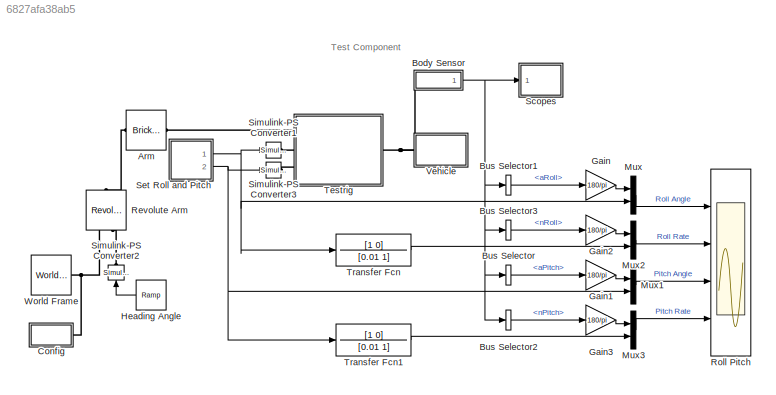
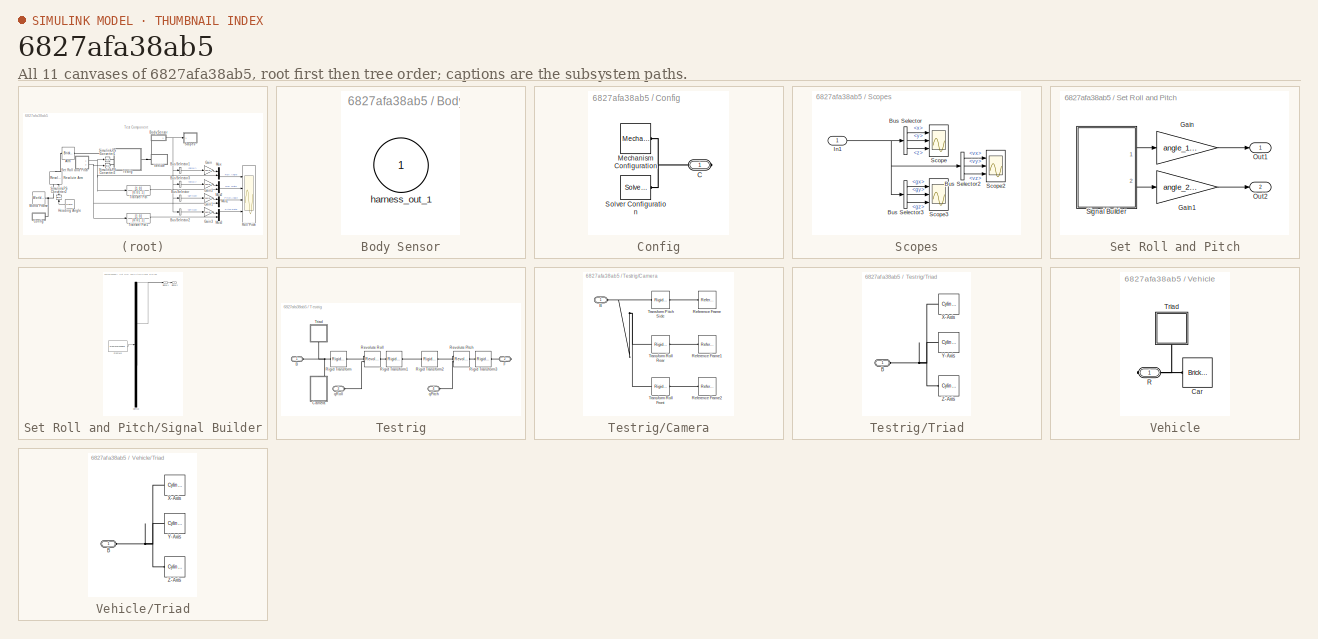
[diagram: thumbnail index - all 11 canvases of the model, root first then tree order]
MODEL slx_6827afa38ab5
KIND model
CONFIG AbsTol = auto
CONFIG EnableMultiTasking = off
CONFIG FixedStep = auto
CONFIG MaxStep = auto
CONFIG MinStep = auto
CONFIG RelTol = 1e-3
CONFIG SampleTimeConstraint = Unconstrained
CONFIG SolverName = VariableStepAuto
CONFIG StartTime = 0.0
CONFIG StopTime = 25
BLOCK [Reference] Arm  REF=sm_lib/Body Elements/Brick Solid
  Ports = [0, 0, 0, 0, 0, 1, 1]
  SourceBlock = sm_lib/Body Elements/Brick Solid
  SourceProductBaseCode = MS
  SourceType = Brick Solid
BLOCK [SubSystem] Body Sensor
  Ports = [0, 1, 0, 0, 0, 1]
  RequestExecContextInheritance = off
  Tag = __SL_testing_harness_stub_
BLOCK [Outport] Body Sensor/harness_out_1
  VectorParamsAs1DForOutWhenUnconnected = off
BLOCK [BusSelector] Bus Selector
  OutputSignals = aPitch
  Ports = [1, 1]
BLOCK [BusSelector] Bus Selector1
  OutputSignals = aRoll
  Ports = [1, 1]
BLOCK [BusSelector] Bus Selector2
  OutputSignals = nPitch
  Ports = [1, 1]
BLOCK [BusSelector] Bus Selector3
  OutputSignals = nRoll
  Ports = [1, 1]
BLOCK [SubSystem] Config
  Ports = [0, 0, 0, 0, 0, 0, 1]
  RequestExecContextInheritance = off
BLOCK [PMIOPort] Config/C
  Side = Right
BLOCK [Reference] Config/Mechanism Configuration  REF=sm_lib/Utilities/Mechanism
Configuration
  Ports = [0, 0, 0, 0, 0, 0, 1]
  SourceBlock = sm_lib/Utilities/Mechanism\nConfiguration
  SourceProductBaseCode = MS
  SourceType = Mechanism\nConfiguration
BLOCK [Reference] Config/Solver Configuration  REF=nesl_utility/Solver
Configuration
  Ports = [0, 0, 0, 0, 0, 0, 1]
  SourceBlock = nesl_utility/Solver\nConfiguration
  SourceProductBaseCode = SS,PW,VE
  SourceType = Solver\nConfiguration
BLOCK [Gain] Gain
  Gain = 180/pi
BLOCK [Gain] Gain1
  Gain = 180/pi
BLOCK [Gain] Gain2
  Gain = 180/pi
BLOCK [Gain] Gain3
  Gain = 180/pi
BLOCK [Reference] Heading Angle  REF=simulink/Sources/Ramp
  Ports = [0, 1]
  SourceBlock = simulink/Sources/Ramp
  SourceProductBaseCode = SL
  SourceType = Ramp
BLOCK [Mux] Mux
  DisplayOption = bar
  Inputs = 2
  Ports = [2, 1]
BLOCK [Mux] Mux1
  DisplayOption = bar
  Inputs = 2
  Ports = [2, 1]
BLOCK [Mux] Mux2
  DisplayOption = bar
  Inputs = 2
  Ports = [2, 1]
BLOCK [Mux] Mux3
  DisplayOption = bar
  Inputs = 2
  Ports = [2, 1]
BLOCK [Reference] Revolute Arm  REF=sm_lib/Joints/Revolute Joint
  NameLocation = left
  Ports = [0, 0, 0, 0, 0, 2, 1]
  SourceBlock = sm_lib/Joints/Revolute Joint
  SourceProductBaseCode = MS
  SourceType = Revolute Joint
BLOCK [Scope] Roll Pitch
  Floating = off
  NumInputPorts = 4
  Ports = [4]
  ScopeSpecificationString = Simulink.scopes.TimeScopeBlockCfg('CurrentConfiguration', extmgr.ConfigurationSet(extmgr.Configuration('Core','General UI',true),extmgr.Configuration('Core','Source UI',true),extmgr.Configuration('Sources','WiredSimulink',true,'DataLoggingVariableName','ScopeData1'),extmgr.Configuration('Visuals','Time Domain',true,'SerializedDisplays',{struct('MinYLimReal','-37.5','MaxYLimReal','37.5','YLabelReal...<+3385ch>
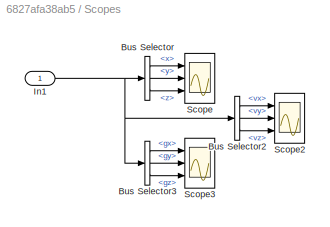
BLOCK [SubSystem] Scopes
  Ports = [1]
  RequestExecContextInheritance = off
BLOCK [BusSelector] Scopes/Bus Selector
  OutputSignals = x,y,z
  Ports = [1, 3]
BLOCK [BusSelector] Scopes/Bus Selector2
  OutputSignals = vx,vy,vz
  Ports = [1, 3]
BLOCK [BusSelector] Scopes/Bus Selector3
  OutputSignals = gx,gy,gz
  Ports = [1, 3]
BLOCK [Inport] Scopes/In1
BLOCK [Scope] Scopes/Scope
  Floating = off
  NumInputPorts = 3
  Ports = [3]
  ScopeSpecificationString = Simulink.scopes.TimeScopeBlockCfg('CurrentConfiguration', extmgr.ConfigurationSet(extmgr.Configuration('Core','General UI',true),extmgr.Configuration('Core','Source UI',true),extmgr.Configuration('Sources','WiredSimulink',true,'DataLoggingVariableName','ScopeData1'),extmgr.Configuration('Visuals','Time Domain',true,'SerializedDisplays',{struct('MinYLimReal','-0.3125','MaxYLimReal','0.3125','YLabel...<+2746ch>
BLOCK [Scope] Scopes/Scope2
  Floating = off
  NumInputPorts = 3
  Ports = [3]
  ScopeSpecificationString = Simulink.scopes.TimeScopeBlockCfg('CurrentConfiguration', extmgr.ConfigurationSet(extmgr.Configuration('Core','General UI',true),extmgr.Configuration('Core','Source UI',true),extmgr.Configuration('Sources','WiredSimulink',true,'DataLoggingVariableName','ScopeData3'),extmgr.Configuration('Visuals','Time Domain',true,'SerializedDisplays',{struct('MinYLimReal','-0.39311','MaxYLimReal','3.53796','YLab...<+2770ch>
BLOCK [Scope] Scopes/Scope3
  Floating = off
  NumInputPorts = 3
  Ports = [3]
  ScopeSpecificationString = Simulink.scopes.TimeScopeBlockCfg('CurrentConfiguration', extmgr.ConfigurationSet(extmgr.Configuration('Core','General UI',true),extmgr.Configuration('Core','Source UI',true),extmgr.Configuration('Sources','WiredSimulink',true,'DataLoggingVariableName','ScopeData4'),extmgr.Configuration('Visuals','Time Domain',true,'SerializedDisplays',{struct('MinYLimReal','-17.19122','MaxYLimReal','130.04695','Y...<+2757ch>
BLOCK [SubSystem] Set Roll and Pitch
  Ports = [0, 2]
  RequestExecContextInheritance = off
BLOCK [Gain] Set Roll and Pitch/Gain
  Gain = angle_1_max
BLOCK [Gain] Set Roll and Pitch/Gain1
  Gain = angle_2_max
BLOCK [Outport] Set Roll and Pitch/Out1
  VectorParamsAs1DForOutWhenUnconnected = off
BLOCK [Outport] Set Roll and Pitch/Out2
  Port = 2
  VectorParamsAs1DForOutWhenUnconnected = off
BLOCK [SubSystem] Set Roll and Pitch/Signal Builder
  ClipboardFcn = sigbuilder_block('clipboard');
  CloseFcn = sigbuilder_block('close');
  ContinueFcn = sigbuilder_block('continue');
  CopyFcn = sigbuilder_block('copy');
  DeleteFcn = sigbuilder_block('delete');
  LoadFcn = sigbuilder_block('load');
  MaskHideContents = on
  ModelCloseFcn = sigbuilder_block('modelClose');
  NameChangeFcn = sigbuilder_block('namechange');
  OpenFcn = sigbuilder_block('open',[437.6 199.2 550.4 400 ]);
  PauseFcn = sigbuilder_block('pause');
  Ports = [0, 2]
  PreSaveFcn = sigbuilder_block('preSave');
  RequestExecContextInheritance = off
  StartFcn = sigbuilder_block('start');
  StopFcn = sigbuilder_block('stop');
  Tag = STV Subsys
BLOCK [Demux] Set Roll and Pitch/Signal Builder/Demux
  DisplayOption = none
  Outputs = 2
  Ports = [1, 2]
  Tag = STV Demux
BLOCK [FromWorkspace] Set Roll and Pitch/Signal Builder/FromWs
  Tag = STV FromWs
  VariableName = tuvar
BLOCK [Outport] Set Roll and Pitch/Signal Builder/Signal 1
  Tag = STV Outport
  VectorParamsAs1DForOutWhenUnconnected = off
BLOCK [Outport] Set Roll and Pitch/Signal Builder/Signal 2
  Port = 2
  Tag = STV Outport
  VectorParamsAs1DForOutWhenUnconnected = off
BLOCK [Reference] Simulink-PS Converter1  REF=nesl_utility/Simulink-PS
Converter
  Ports = [1, 0, 0, 0, 0, 0, 1]
  SourceBlock = nesl_utility/Simulink-PS\nConverter
  SourceProductBaseCode = SS,PW,VE
  SourceType = Simulink-PS\nConverter
BLOCK [Reference] Simulink-PS Converter2  REF=nesl_utility/Simulink-PS
Converter
  NameLocation = right
  Ports = [1, 0, 0, 0, 0, 0, 1]
  SourceBlock = nesl_utility/Simulink-PS\nConverter
  SourceProductBaseCode = SS,PW,VE
  SourceType = Simulink-PS\nConverter
BLOCK [Reference] Simulink-PS Converter3  REF=nesl_utility/Simulink-PS
Converter
  Ports = [1, 0, 0, 0, 0, 0, 1]
  SourceBlock = nesl_utility/Simulink-PS\nConverter
  SourceProductBaseCode = SS,PW,VE
  SourceType = Simulink-PS\nConverter
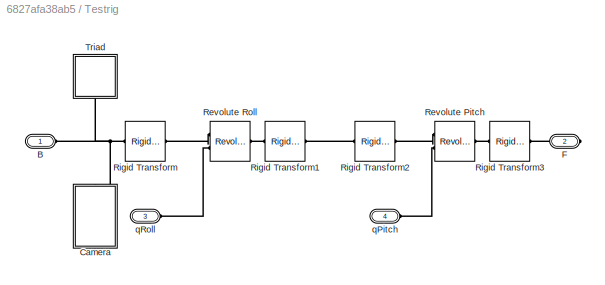
BLOCK [SubSystem] Testrig
  Ports = [0, 0, 0, 0, 0, 3, 1]
  RequestExecContextInheritance = off
BLOCK [PMIOPort] Testrig/B
  Side = Left
BLOCK [SubSystem] Testrig/Camera
  NameLocation = left
  Ports = [0, 0, 0, 0, 0, 1]
  RequestExecContextInheritance = off
BLOCK [PMIOPort] Testrig/Camera/B
  Side = Left
BLOCK [Reference] Testrig/Camera/Reference Frame  REF=sm_lib/Frames and
Transforms/Reference
Frame
  NameLocation = top
  Ports = [0, 0, 0, 0, 0, 0, 1]
  SourceBlock = sm_lib/Frames and\nTransforms/Reference\nFrame
  SourceProductBaseCode = MS
  SourceType = Reference\nFrame
BLOCK [Reference] Testrig/Camera/Reference Frame1  REF=sm_lib/Frames and
Transforms/Reference
Frame
  NameLocation = top
  Ports = [0, 0, 0, 0, 0, 0, 1]
  SourceBlock = sm_lib/Frames and\nTransforms/Reference\nFrame
  SourceProductBaseCode = MS
  SourceType = Reference\nFrame
BLOCK [Reference] Testrig/Camera/Reference Frame2  REF=sm_lib/Frames and
Transforms/Reference
Frame
  NameLocation = top
  Ports = [0, 0, 0, 0, 0, 0, 1]
  SourceBlock = sm_lib/Frames and\nTransforms/Reference\nFrame
  SourceProductBaseCode = MS
  SourceType = Reference\nFrame
BLOCK [Reference] Testrig/Camera/Transform Pitch Side  REF=sm_lib/Frames and
Transforms/Rigid
Transform
  Ports = [0, 0, 0, 0, 0, 1, 1]
  SourceBlock = sm_lib/Frames and\nTransforms/Rigid\nTransform
  SourceProductBaseCode = MS
  SourceType = Rigid\nTransform
BLOCK [Reference] Testrig/Camera/Transform Roll Front  REF=sm_lib/Frames and
Transforms/Rigid
Transform
  Ports = [0, 0, 0, 0, 0, 1, 1]
  SourceBlock = sm_lib/Frames and\nTransforms/Rigid\nTransform
  SourceProductBaseCode = MS
  SourceType = Rigid\nTransform
BLOCK [Reference] Testrig/Camera/Transform Roll Rear  REF=sm_lib/Frames and
Transforms/Rigid
Transform
  Ports = [0, 0, 0, 0, 0, 1, 1]
  SourceBlock = sm_lib/Frames and\nTransforms/Rigid\nTransform
  SourceProductBaseCode = MS
  SourceType = Rigid\nTransform
BLOCK [PMIOPort] Testrig/F
  Port = 2
  Side = Right
BLOCK [Reference] Testrig/Revolute Pitch  REF=sm_lib/Joints/Revolute Joint
  Ports = [0, 0, 0, 0, 0, 2, 1]
  SourceBlock = sm_lib/Joints/Revolute Joint
  SourceProductBaseCode = MS
  SourceType = Revolute Joint
BLOCK [Reference] Testrig/Revolute Roll  REF=sm_lib/Joints/Revolute Joint
  Ports = [0, 0, 0, 0, 0, 2, 1]
  SourceBlock = sm_lib/Joints/Revolute Joint
  SourceProductBaseCode = MS
  SourceType = Revolute Joint
BLOCK [Reference] Testrig/Rigid Transform  REF=sm_lib/Frames and
Transforms/Rigid
Transform
  Ports = [0, 0, 0, 0, 0, 1, 1]
  SourceBlock = sm_lib/Frames and\nTransforms/Rigid\nTransform
  SourceProductBaseCode = MS
  SourceType = Rigid\nTransform
BLOCK [Reference] Testrig/Rigid Transform1  REF=sm_lib/Frames and
Transforms/Rigid
Transform
  Ports = [0, 0, 0, 0, 0, 1, 1]
  SourceBlock = sm_lib/Frames and\nTransforms/Rigid\nTransform
  SourceProductBaseCode = MS
  SourceType = Rigid\nTransform
BLOCK [Reference] Testrig/Rigid Transform2  REF=sm_lib/Frames and
Transforms/Rigid
Transform
  Ports = [0, 0, 0, 0, 0, 1, 1]
  SourceBlock = sm_lib/Frames and\nTransforms/Rigid\nTransform
  SourceProductBaseCode = MS
  SourceType = Rigid\nTransform
BLOCK [Reference] Testrig/Rigid Transform3  REF=sm_lib/Frames and
Transforms/Rigid
Transform
  Ports = [0, 0, 0, 0, 0, 1, 1]
  SourceBlock = sm_lib/Frames and\nTransforms/Rigid\nTransform
  SourceProductBaseCode = MS
  SourceType = Rigid\nTransform
BLOCK [SubSystem] Testrig/Triad
  NameLocation = right
  Ports = [0, 0, 0, 0, 0, 1]
  RequestExecContextInheritance = off
BLOCK [PMIOPort] Testrig/Triad/B
  Side = Left
BLOCK [Reference] Testrig/Triad/X-Axis  REF=sm_lib/Body Elements/Cylindrical Solid
  Ports = [0, 0, 0, 0, 0, 1]
  SourceBlock = sm_lib/Body Elements/Cylindrical Solid
  SourceProductBaseCode = MS
  SourceType = Cylindrical Solid
BLOCK [Reference] Testrig/Triad/Y-Axis  REF=sm_lib/Body Elements/Cylindrical Solid
  Ports = [0, 0, 0, 0, 0, 1]
  SourceBlock = sm_lib/Body Elements/Cylindrical Solid
  SourceProductBaseCode = MS
  SourceType = Cylindrical Solid
BLOCK [Reference] Testrig/Triad/Z-Axis  REF=sm_lib/Body Elements/Cylindrical Solid
  Ports = [0, 0, 0, 0, 0, 1]
  SourceBlock = sm_lib/Body Elements/Cylindrical Solid
  SourceProductBaseCode = MS
  SourceType = Cylindrical Solid
BLOCK [PMIOPort] Testrig/qPitch
  Port = 4
  Side = Left
BLOCK [PMIOPort] Testrig/qRoll
  Port = 3
  Side = Left
BLOCK [TransferFcn] Transfer Fcn
  Denominator = [0.01 1]
  NameLocation = top
  Numerator = [1 0]
BLOCK [TransferFcn] Transfer Fcn1
  Denominator = [0.01 1]
  NameLocation = top
  Numerator = [1 0]
BLOCK [SubSystem] Vehicle
  Ports = [0, 0, 0, 0, 0, 0, 1]
  RequestExecContextInheritance = off
BLOCK [Reference] Vehicle/Car  REF=sm_lib/Body Elements/Brick Solid
  Ports = [0, 0, 0, 0, 0, 0, 1]
  SourceBlock = sm_lib/Body Elements/Brick Solid
  SourceProductBaseCode = MS
  SourceType = Brick Solid
BLOCK [PMIOPort] Vehicle/R
  Side = Right
BLOCK [SubSystem] Vehicle/Triad
  NameLocation = right
  Ports = [0, 0, 0, 0, 0, 1]
  RequestExecContextInheritance = off
BLOCK [PMIOPort] Vehicle/Triad/B
  Side = Left
BLOCK [Reference] Vehicle/Triad/X-Axis  REF=sm_lib/Body Elements/Cylindrical Solid
  Ports = [0, 0, 0, 0, 0, 1]
  SourceBlock = sm_lib/Body Elements/Cylindrical Solid
  SourceProductBaseCode = MS
  SourceType = Cylindrical Solid
BLOCK [Reference] Vehicle/Triad/Y-Axis  REF=sm_lib/Body Elements/Cylindrical Solid
  Ports = [0, 0, 0, 0, 0, 1]
  SourceBlock = sm_lib/Body Elements/Cylindrical Solid
  SourceProductBaseCode = MS
  SourceType = Cylindrical Solid
BLOCK [Reference] Vehicle/Triad/Z-Axis  REF=sm_lib/Body Elements/Cylindrical Solid
  Ports = [0, 0, 0, 0, 0, 1]
  SourceBlock = sm_lib/Body Elements/Cylindrical Solid
  SourceProductBaseCode = MS
  SourceType = Cylindrical Solid
BLOCK [Reference] World Frame  REF=sm_lib/Frames and
Transforms/World Frame
  Ports = [0, 0, 0, 0, 0, 0, 1]
  SourceBlock = sm_lib/Frames and\nTransforms/World Frame
  SourceProductBaseCode = MS
  SourceType = World Frame
ANNOTATION (root): Test Component
NET Body Sensor:1 -> Bus Selector1:1, Bus Selector2:1, Bus Selector3:1, Bus Selector:1, Scopes:1
LINE Bus Selector1:1 -> Gain:1
LINE Bus Selector2:1 -> Gain3:1
LINE Bus Selector3:1 -> Gain2:1
LINE Bus Selector:1 -> Gain1:1
LINE Gain1:1 -> Mux1:1
LINE Gain2:1 -> Mux2:1
LINE Gain3:1 -> Mux3:1
LINE Gain:1 -> Mux:1
LINE Heading Angle:1 -> Simulink-PS Converter2:1
LINE Mux1:1 -> Roll Pitch:3
LINE Mux2:1 -> Roll Pitch:2
LINE Mux3:1 -> Roll Pitch:4
LINE Mux:1 -> Roll Pitch:1
LINE Scopes/Bus Selector2:1 -> Scopes/Scope2:1
LINE Scopes/Bus Selector2:2 -> Scopes/Scope2:2
LINE Scopes/Bus Selector2:3 -> Scopes/Scope2:3
LINE Scopes/Bus Selector3:1 -> Scopes/Scope3:1
LINE Scopes/Bus Selector3:2 -> Scopes/Scope3:2
LINE Scopes/Bus Selector3:3 -> Scopes/Scope3:3
LINE Scopes/Bus Selector:1 -> Scopes/Scope:1
LINE Scopes/Bus Selector:2 -> Scopes/Scope:2
LINE Scopes/Bus Selector:3 -> Scopes/Scope:3
NET Scopes/In1:1 -> Scopes/Bus Selector2:1, Scopes/Bus Selector3:1, Scopes/Bus Selector:1
LINE Set Roll and Pitch/Gain1:1 -> Set Roll and Pitch/Out2:1
LINE Set Roll and Pitch/Gain:1 -> Set Roll and Pitch/Out1:1
LINE Set Roll and Pitch/Signal Builder:1 -> Set Roll and Pitch/Gain:1
LINE Set Roll and Pitch/Signal Builder:2 -> Set Roll and Pitch/Gain1:1
NET Set Roll and Pitch:1 -> Mux:2, Simulink-PS Converter1:1, Transfer Fcn:1
NET Set Roll and Pitch:2 -> Mux1:2, Simulink-PS Converter3:1, Transfer Fcn1:1
LINE Transfer Fcn1:1 -> Mux3:2
LINE Transfer Fcn:1 -> Mux2:2
PLINE Arm:LConn1 -- Revolute Arm:RConn1
PLINE Arm:RConn1 -- Testrig:LConn1
PNET net1: Body Sensor:LConn1 -- Testrig:RConn1 -- Vehicle:RConn1
PNET net2: Config/C:RConn1 -- Config/Mechanism Configuration:RConn1 -- Config/Solver Configuration:RConn1
PNET net3: Config:RConn1 -- Revolute Arm:LConn1 -- World Frame:RConn1
PLINE Revolute Arm:LConn2 -- Simulink-PS Converter2:RConn1
PLINE Simulink-PS Converter1:RConn1 -- Testrig:LConn2
PLINE Simulink-PS Converter3:RConn1 -- Testrig:LConn3
PNET net4: Testrig/B:RConn1 -- Testrig/Camera:LConn1 -- Testrig/Rigid Transform:LConn1 -- Testrig/Triad:LConn1
PNET net5: Testrig/Camera/B:RConn1 -- Testrig/Camera/Transform Pitch Side:LConn1 -- Testrig/Camera/Transform Roll Front:LConn1 -- Testrig/Camera/Transform Roll Rear:LConn1
PLINE Testrig/Camera/Reference Frame1:RConn1 -- Testrig/Camera/Transform Roll Rear:RConn1
PLINE Testrig/Camera/Reference Frame2:RConn1 -- Testrig/Camera/Transform Roll Front:RConn1
PLINE Testrig/Camera/Reference Frame:RConn1 -- Testrig/Camera/Transform Pitch Side:RConn1
PLINE Testrig/F:RConn1 -- Testrig/Rigid Transform3:LConn1
PLINE Testrig/Revolute Pitch:LConn1 -- Testrig/Rigid Transform2:RConn1
PLINE Testrig/Revolute Pitch:LConn2 -- Testrig/qPitch:RConn1
PLINE Testrig/Revolute Pitch:RConn1 -- Testrig/Rigid Transform3:RConn1
PLINE Testrig/Revolute Roll:LConn1 -- Testrig/Rigid Transform:RConn1
PLINE Testrig/Revolute Roll:LConn2 -- Testrig/qRoll:RConn1
PLINE Testrig/Revolute Roll:RConn1 -- Testrig/Rigid Transform1:RConn1
PLINE Testrig/Rigid Transform1:LConn1 -- Testrig/Rigid Transform2:LConn1
PNET net6: Testrig/Triad/B:RConn1 -- Testrig/Triad/X-Axis:LConn1 -- Testrig/Triad/Y-Axis:LConn1 -- Testrig/Triad/Z-Axis:LConn1
PNET net7: Vehicle/Car:RConn1 -- Vehicle/R:RConn1 -- Vehicle/Triad:LConn1
PNET net8: Vehicle/Triad/B:RConn1 -- Vehicle/Triad/X-Axis:LConn1 -- Vehicle/Triad/Y-Axis:LConn1 -- Vehicle/Triad/Z-Axis:LConn1
note: NET lines group one-source signal fan-out (src -> all destinations, sorted); 1:1 wires keep LINE; PNET lines group multi-terminal physical nets as a canonical sorted terminal list (undirected conserving connections); 2-terminal nets keep the pairwise PLINE form
